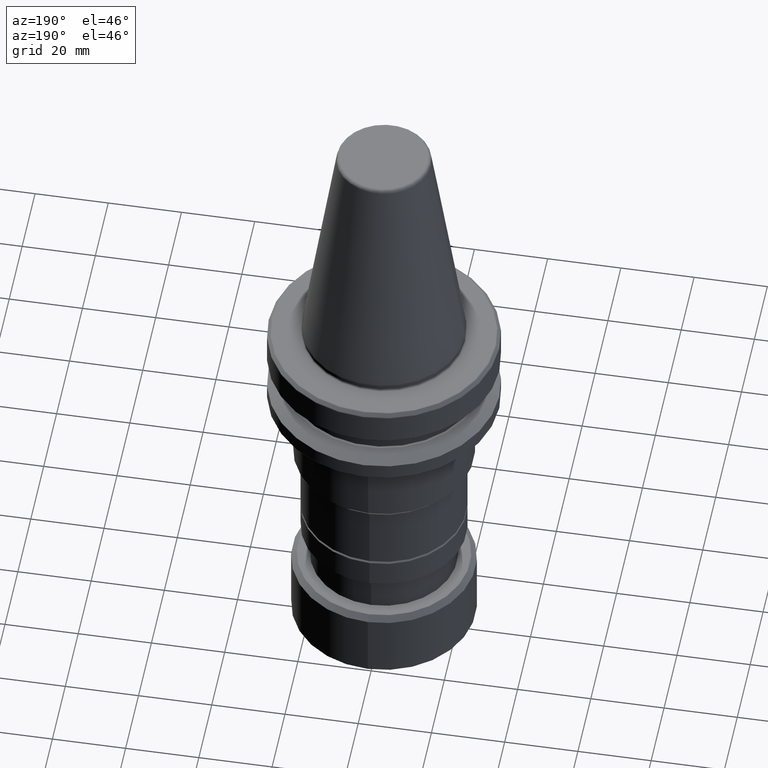
[diagram: clean part render]
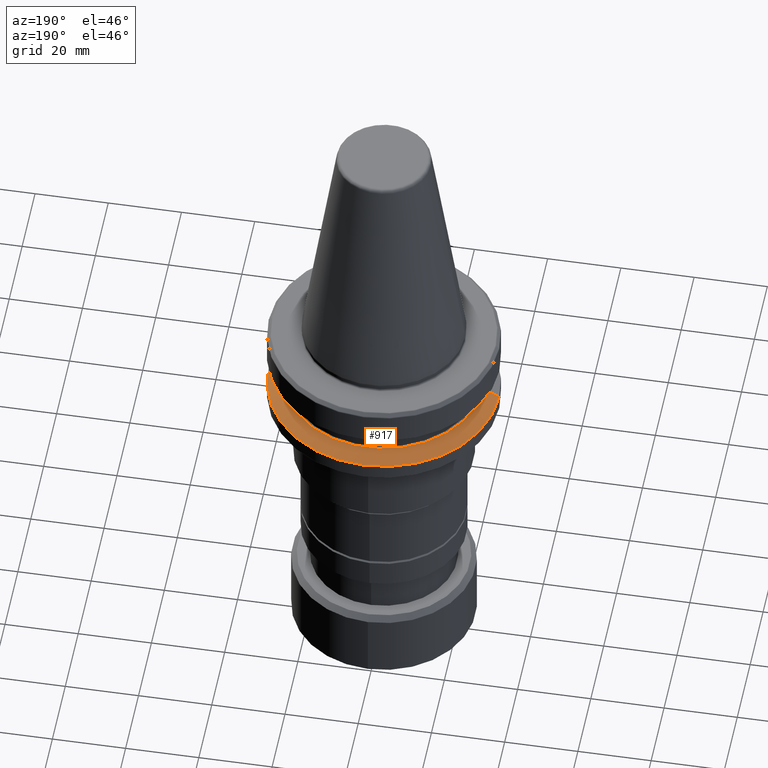
[diagram: same view with one face highlighted and labeled with its STEP entity id]
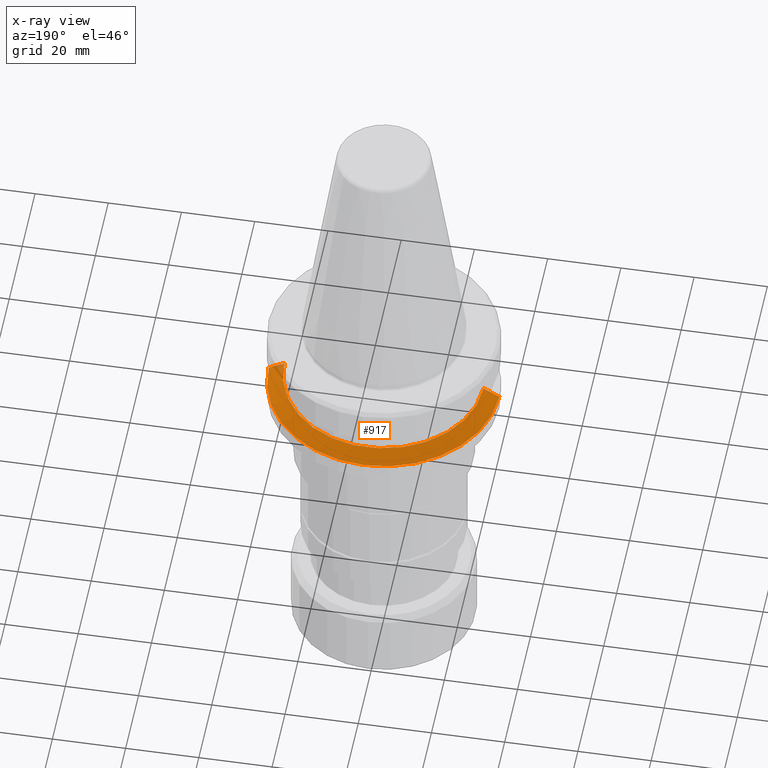
[diagram: x-ray of the same camera — body ghosted, the highlighted face saturated]
A machine part, auxiliary view. The second image highlights one B-rep face of the part: STEP entity #917.
The next image is the same camera in x-ray: the body ghosted, the highlighted face saturated — about 2% of this face is hidden behind the body in this view.
In plain terms, the highlighted conical surface has half-angle 60 deg.
Its self-contained STEP definition (entity closure, byte-faithful):
#10 = CARTESIAN_POINT ( 'NONE',  ( 27.16962701892216700, 3.327319676275047600E-015, -19.10000000000000500 ) ) ;
#25 = VERTEX_POINT ( 'NONE', #801 ) ;
#120 = EDGE_CURVE ( 'NONE', #1765, #25, #500, .T. ) ;
#167 = DIRECTION ( 'NONE',  ( -0.0000000000000000000, -0.0000000000000000000, 1.000000000000000000 ) ) ;
#168 = EDGE_LOOP ( 'NONE', ( #1001, #1743, #1035, #1229 ) ) ;
#229 = DIRECTION ( 'NONE',  ( -0.8660254037844403700, 0.0000000000000000000, -0.4999999999999970000 ) ) ;
#248 = EDGE_CURVE ( 'NONE', #998, #338, #402, .T. ) ;
#249 = VECTOR ( 'NONE', #229, 1000.000000000000000 ) ;
#271 = LINE ( 'NONE', #739, #249 ) ;
#298 = EDGE_CURVE ( 'NONE', #338, #25, #271, .T. ) ;
#338 = VERTEX_POINT ( 'NONE', #912 ) ;
#402 = CIRCLE ( 'NONE', #688, 27.16962701892216700 ) ;
#494 = DIRECTION ( 'NONE',  ( 1.000000000000000000, 0.0000000000000000000, 0.0000000000000000000 ) ) ;
#500 = CIRCLE ( 'NONE', #1611, 31.50000000000000000 ) ;
#530 = CARTESIAN_POINT ( 'NONE',  ( 0.0000000000000000000, 0.0000000000000000000, -21.60014200631675500 ) ) ;
#583 = DIRECTION ( 'NONE',  ( 0.8660254037844403700, 1.060575238724909000E-016, -0.4999999999999970000 ) ) ;
#599 = DIRECTION ( 'NONE',  ( 0.0000000000000000000, 0.0000000000000000000, -1.000000000000000000 ) ) ;
#688 = AXIS2_PLACEMENT_3D ( 'NONE', #916, #1196, #494 ) ;
#739 = CARTESIAN_POINT ( 'NONE',  ( -27.16962701892216700, 0.0000000000000000000, -19.10000000000000500 ) ) ;
#801 = CARTESIAN_POINT ( 'NONE',  ( -31.50000000000000000, 3.857637417314162700E-015, -21.60014200631675500 ) ) ;
#912 = CARTESIAN_POINT ( 'NONE',  ( -27.16962701892216700, 0.0000000000000000000, -19.10000000000000500 ) ) ;
#916 = CARTESIAN_POINT ( 'NONE',  ( 0.0000000000000000000, 0.0000000000000000000, -19.10000000000000500 ) ) ;
#917 = ADVANCED_FACE ( 'NONE', ( #1234 ), #1172, .T. ) ;
#920 = CARTESIAN_POINT ( 'NONE',  ( 31.50000000000000000, 0.0000000000000000000, -21.60014200631675500 ) ) ;
#998 = VERTEX_POINT ( 'NONE', #1378 ) ;
#1001 = ORIENTED_EDGE ( 'NONE', *, *, #248, .F. ) ;
#1024 = DIRECTION ( 'NONE',  ( -1.000000000000000000, 0.0000000000000000000, 0.0000000000000000000 ) ) ;
#1035 = ORIENTED_EDGE ( 'NONE', *, *, #120, .T. ) ;
#1172 = CONICAL_SURFACE ( 'NONE', #1263, 27.16962701892216700, 1.047197551196601200 ) ;
#1196 = DIRECTION ( 'NONE',  ( -0.0000000000000000000, -0.0000000000000000000, 1.000000000000000000 ) ) ;
#1205 = CARTESIAN_POINT ( 'NONE',  ( 0.0000000000000000000, 0.0000000000000000000, -19.10000000000000500 ) ) ;
#1229 = ORIENTED_EDGE ( 'NONE', *, *, #298, .F. ) ;
#1234 = FACE_OUTER_BOUND ( 'NONE', #168, .T. ) ;
#1263 = AXIS2_PLACEMENT_3D ( 'NONE', #1205, #599, #1024 ) ;
#1290 = EDGE_CURVE ( 'NONE', #998, #1765, #1610, .T. ) ;
#1378 = CARTESIAN_POINT ( 'NONE',  ( 27.16962701892216700, 3.592478546794605500E-015, -19.10000000000000500 ) ) ;
#1545 = DIRECTION ( 'NONE',  ( 1.000000000000000000, 0.0000000000000000000, 0.0000000000000000000 ) ) ;
#1610 = LINE ( 'NONE', #10, #1617 ) ;
#1611 = AXIS2_PLACEMENT_3D ( 'NONE', #530, #167, #1545 ) ;
#1617 = VECTOR ( 'NONE', #583, 1000.000000000000000 ) ;
#1743 = ORIENTED_EDGE ( 'NONE', *, *, #1290, .T. ) ;
#1765 = VERTEX_POINT ( 'NONE', #920 ) ;